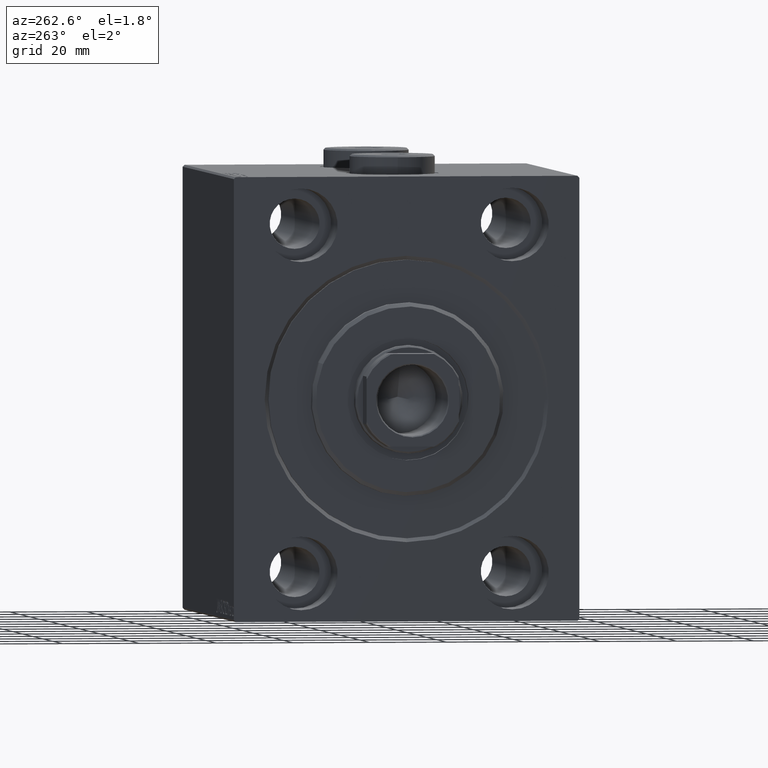
[diagram: clean part render]
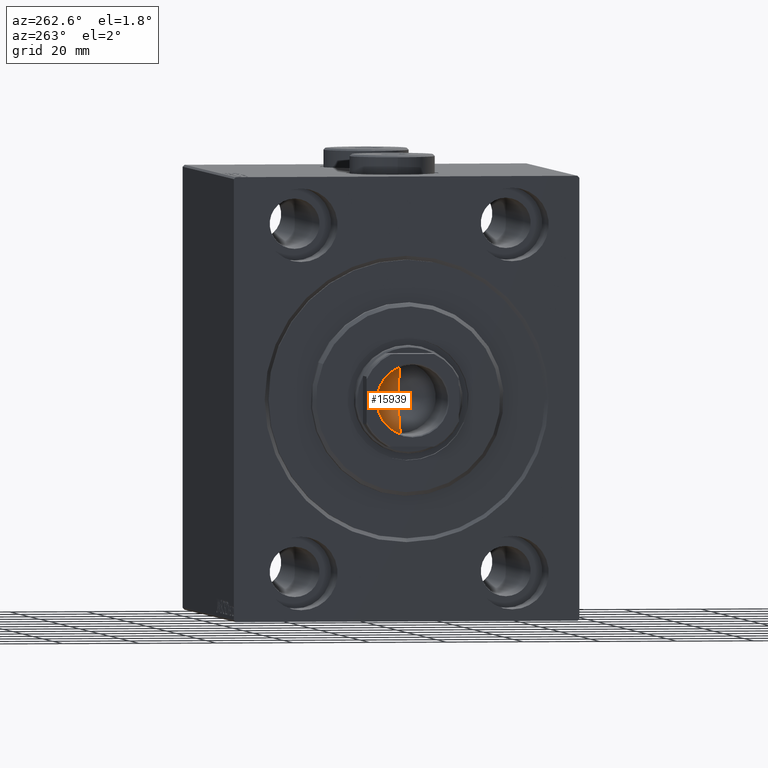
[diagram: same view with one face highlighted and labeled with its STEP entity id]
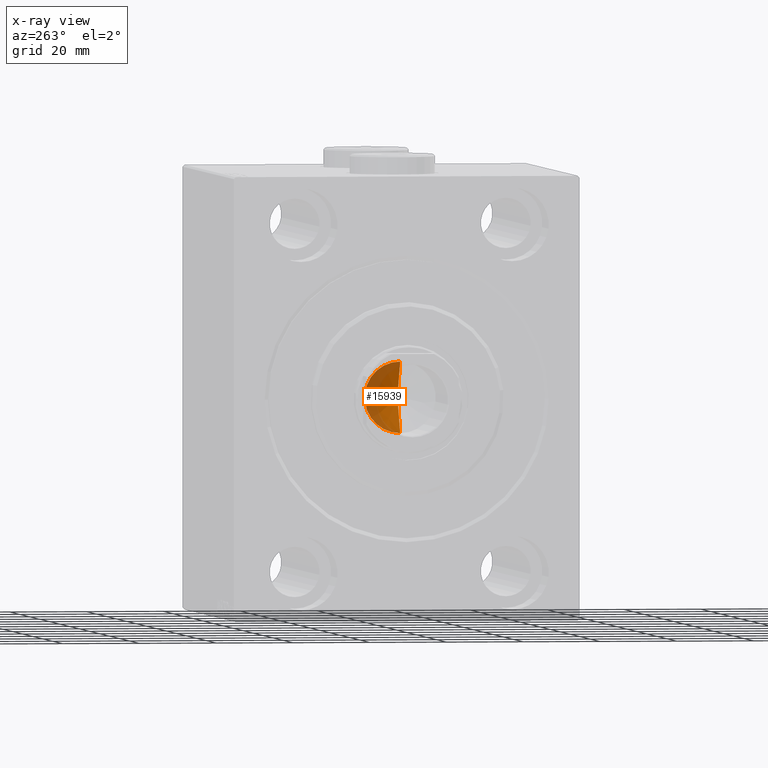
[diagram: x-ray of the same camera — body ghosted, the highlighted face saturated]
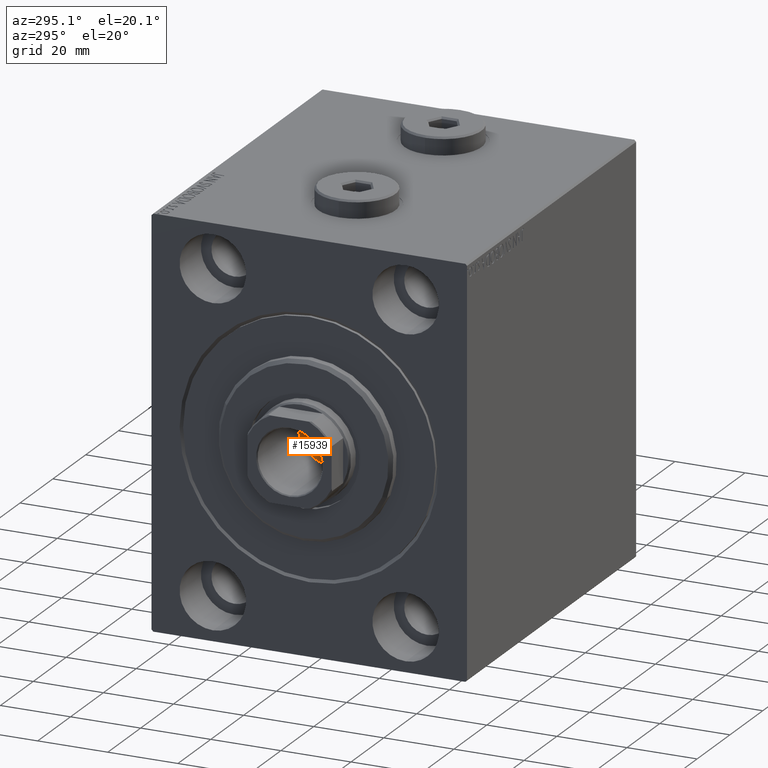
[diagram: same view with one face highlighted and labeled with its STEP entity id]
A machine part, auxiliary view. The second image highlights one B-rep face of the part: STEP entity #15939.
The next image is the same camera in x-ray: the body ghosted, the highlighted face saturated — about 46% of this face is hidden behind the body in this view.
A second angle (auxiliary view) of the same face is appended — the face is thin or edge-on in the first view.
In plain terms, the highlighted conical surface has half-angle 59 deg.
Its self-contained STEP definition (entity closure, byte-faithful):
#1108 = CIRCLE ( 'NONE', #42660, 9.249999999999994671 ) ;
#1843 = CARTESIAN_POINT ( 'NONE',  ( 9.249999999999994671, 0.000000000000000000, 38.00000000000000000 ) ) ;
#7969 = VERTEX_POINT ( 'NONE', #13945 ) ;
#9653 = ORIENTED_EDGE ( 'NONE', *, *, #20709, .T. ) ;
#11909 = DIRECTION ( 'NONE',  ( -0.8571673007021118895, 1.049727191138618079E-16, 0.5150380749100549327 ) ) ;
#12315 = VERTEX_POINT ( 'NONE', #31654 ) ;
#13945 = CARTESIAN_POINT ( 'NONE',  ( -9.249999999999994671, 1.132798289211300909E-15, 38.00000000000000000 ) ) ;
#14579 = FACE_OUTER_BOUND ( 'NONE', #42989, .T. ) ;
#15939 = ADVANCED_FACE ( 'NONE', ( #14579 ), #17431, .F. ) ;
#16323 = DIRECTION ( 'NONE',  ( 1.000000000000000000, 0.000000000000000000, 0.000000000000000000 ) ) ;
#16679 = AXIS2_PLACEMENT_3D ( 'NONE', #18005, #22097, #32807 ) ;
#17431 = CONICAL_SURFACE ( 'NONE', #16679, 9.249999999999994671, 1.029744258676653645 ) ;
#18005 = CARTESIAN_POINT ( 'NONE',  ( 0.000000000000000000, 0.000000000000000000, 38.00000000000000000 ) ) ;
#20709 = EDGE_CURVE ( 'NONE', #12315, #22953, #40395, .T. ) ;
#22097 = DIRECTION ( 'NONE',  ( -0.000000000000000000, -0.000000000000000000, 1.000000000000000000 ) ) ;
#22953 = VERTEX_POINT ( 'NONE', #37732 ) ;
#23168 = ORIENTED_EDGE ( 'NONE', *, *, #37936, .T. ) ;
#24843 = VECTOR ( 'NONE', #25798, 1000.000000000000000 ) ;
#25798 = DIRECTION ( 'NONE',  ( 0.8571673007021118895, 0.000000000000000000, 0.5150380749100549327 ) ) ;
#26126 = CARTESIAN_POINT ( 'NONE',  ( 0.000000000000000000, 0.000000000000000000, 38.00000000000000000 ) ) ;
#29159 = VECTOR ( 'NONE', #11909, 1000.000000000000000 ) ;
#29445 = ORIENTED_EDGE ( 'NONE', *, *, #39650, .F. ) ;
#31654 = CARTESIAN_POINT ( 'NONE',  ( -6.793016015247754405E-15, 0.000000000000000000, 32.44203927399506426 ) ) ;
#32438 = CARTESIAN_POINT ( 'NONE',  ( -9.249999999999994671, 1.132798289211300909E-15, 38.00000000000000000 ) ) ;
#32807 = DIRECTION ( 'NONE',  ( 1.000000000000000000, 0.000000000000000000, 0.000000000000000000 ) ) ;
#32981 = DIRECTION ( 'NONE',  ( -0.000000000000000000, -0.000000000000000000, 1.000000000000000000 ) ) ;
#37732 = CARTESIAN_POINT ( 'NONE',  ( 9.249999999999994671, 0.000000000000000000, 38.00000000000000000 ) ) ;
#37936 = EDGE_CURVE ( 'NONE', #22953, #7969, #1108, .T. ) ;
#39650 = EDGE_CURVE ( 'NONE', #12315, #7969, #42262, .T. ) ;
#40395 = LINE ( 'NONE', #1843, #24843 ) ;
#42262 = LINE ( 'NONE', #32438, #29159 ) ;
#42660 = AXIS2_PLACEMENT_3D ( 'NONE', #26126, #32981, #16323 ) ;
#42989 = EDGE_LOOP ( 'NONE', ( #29445, #9653, #23168 ) ) ;